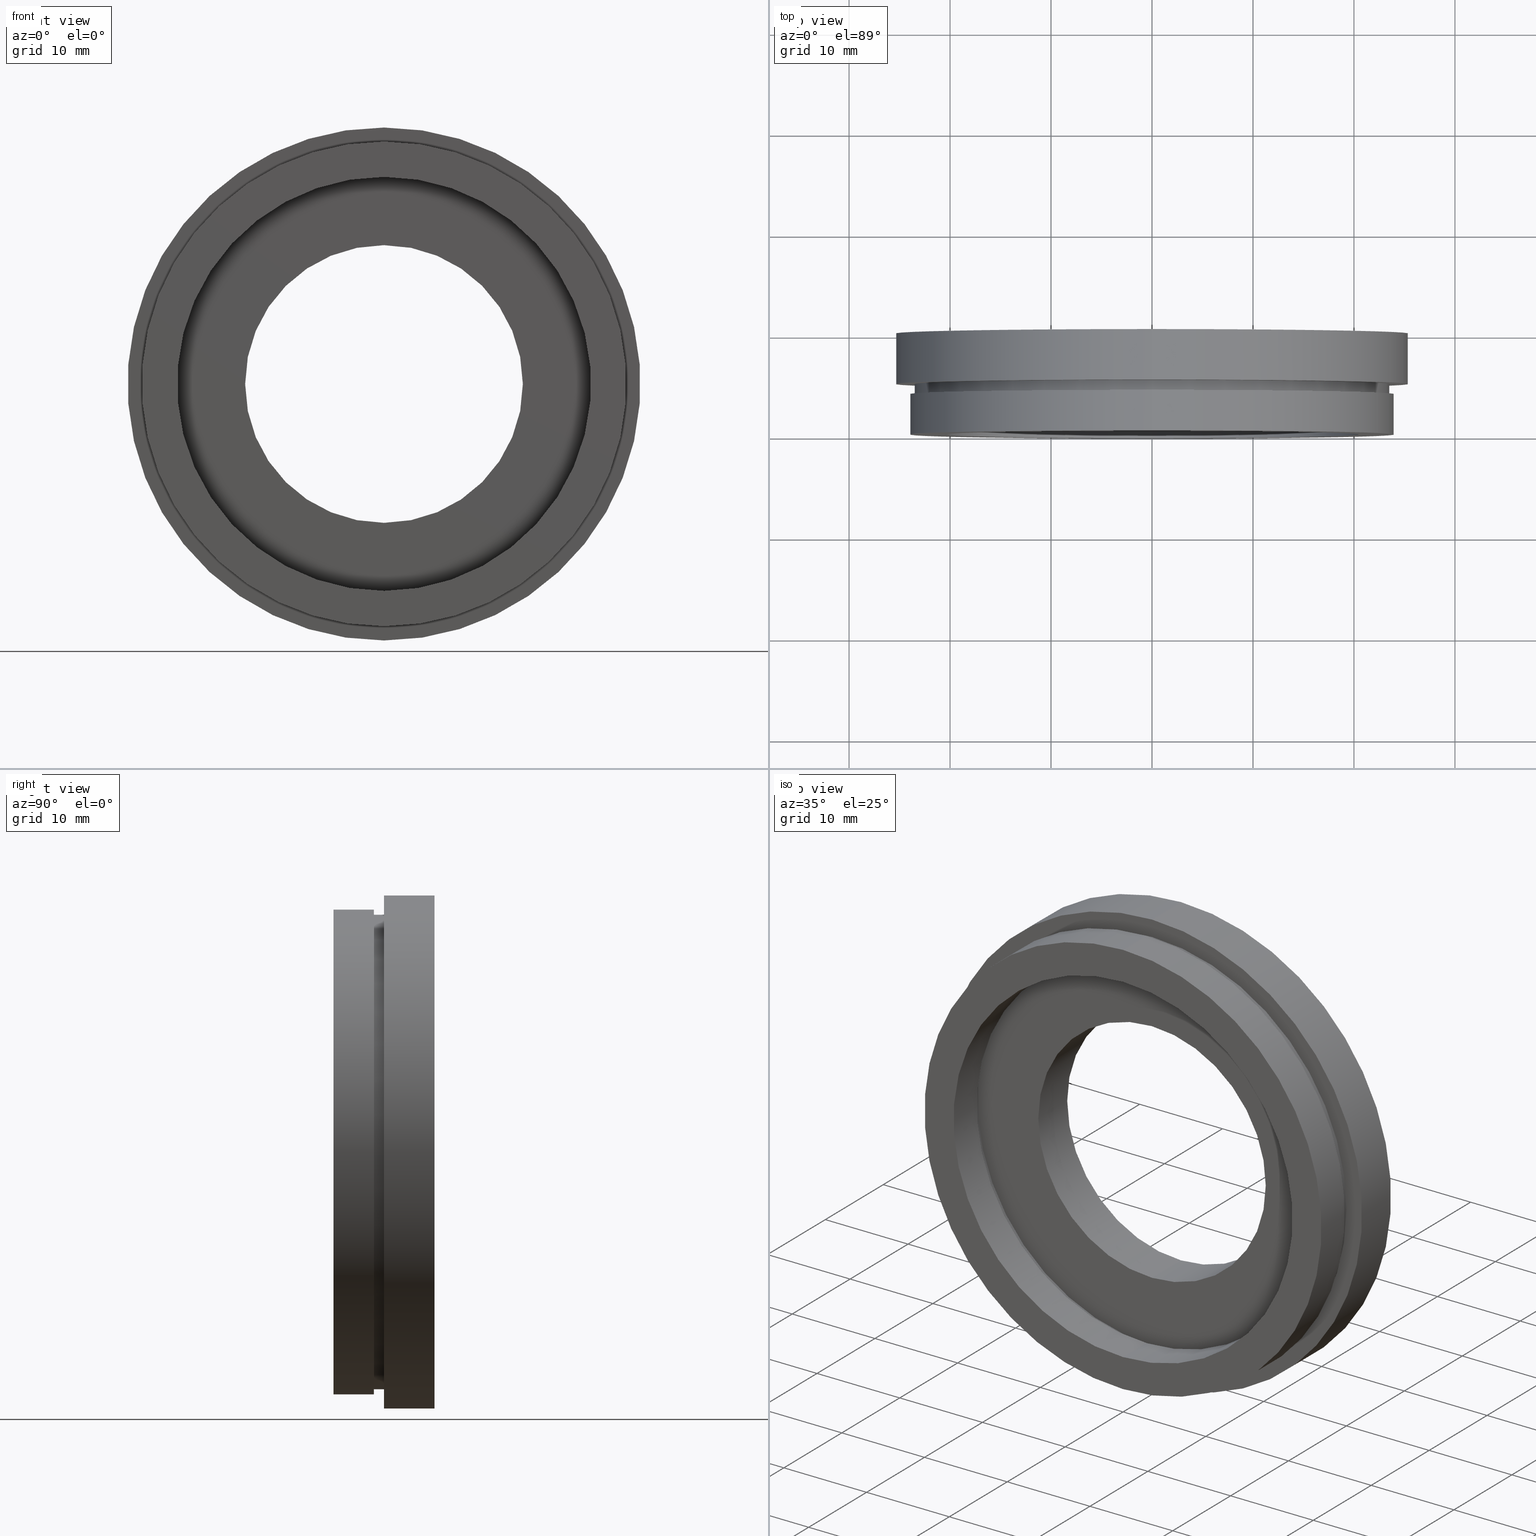
[diagram: canonical four-view strip — front | top / right | iso, engineering-drawing reading convention]
A machine part, canonical four-view strip (front | top / right | iso — engineering-drawing reading convention). The complete STEP part file that produces these views, byte-faithful:
ISO-10303-21;
HEADER;
FILE_DESCRIPTION (( 'STEP AP214' ),
    '1' );
FILE_NAME ('504016.STEP',
    '2019-09-18T07:06:29',
    ( 'user' ),
    ( '΢���й�' ),
    'SwSTEP 2.0',
    'SolidWorks 2016',
    '' );
FILE_SCHEMA (( 'AUTOMOTIVE_DESIGN' ));
ENDSEC;

DATA;
#1 = CYLINDRICAL_SURFACE ( 'NONE', #480, 23.50000000000000000 ) ;
#2 = ORIENTED_EDGE ( 'NONE', *, *, #218, .T. ) ;
#3 = ORIENTED_EDGE ( 'NONE', *, *, #392, .F. ) ;
#4 = CIRCLE ( 'NONE', #190, 23.50000000000000000 ) ;
#5 = FACE_BOUND ( 'NONE', #342, .T. ) ;
#6 = AXIS2_PLACEMENT_3D ( 'NONE', #558, #422, #316 ) ;
#7 = SURFACE_SIDE_STYLE ('',( #557 ) ) ;
#8 = ORIENTED_EDGE ( 'NONE', *, *, #317, .F. ) ;
#9 = DIRECTION ( 'NONE',  ( -0.0000000000000000000, 1.000000000000000000, -0.0000000000000000000 ) ) ;
#10 = CARTESIAN_POINT ( 'NONE',  ( 2.510525938252074500E-015, 17.41929831819392000, -20.50000000000000400 ) ) ;
#11 = DIRECTION ( 'NONE',  ( -0.0000000000000000000, 1.000000000000000000, 0.0000000000000000000 ) ) ;
#12 = DIRECTION ( 'NONE',  ( 0.0000000000000000000, -1.000000000000000000, 0.0000000000000000000 ) ) ;
#13 = PRESENTATION_LAYER_ASSIGNMENT (  '', '', ( #605 ) ) ;
#14 = CYLINDRICAL_SURFACE ( 'NONE', #404, 20.50000000000000400 ) ;
#15 = DIRECTION ( 'NONE',  ( 0.0000000000000000000, 0.0000000000000000000, 1.000000000000000000 ) ) ;
#16 = VERTEX_POINT ( 'NONE', #251 ) ;
#17 = DIRECTION ( 'NONE',  ( 0.0000000000000000000, -1.000000000000000000, 0.0000000000000000000 ) ) ;
#18 = VERTEX_POINT ( 'NONE', #499 ) ;
#19 = ORIENTED_EDGE ( 'NONE', *, *, #276, .T. ) ;
#20 = SURFACE_SIDE_STYLE ('',( #329 ) ) ;
#21 = CARTESIAN_POINT ( 'NONE',  ( 13.75000000000000000, 10.00000000000000000, 0.0000000000000000000 ) ) ;
#22 =( GEOMETRIC_REPRESENTATION_CONTEXT ( 3 ) GLOBAL_UNCERTAINTY_ASSIGNED_CONTEXT ( ( #610 ) ) GLOBAL_UNIT_ASSIGNED_CONTEXT ( ( #73, #127, #377 ) ) REPRESENTATION_CONTEXT ( 'NONE', 'WORKASPACE' ) );
#23 = DIRECTION ( 'NONE',  ( 0.0000000000000000000, 0.0000000000000000000, 1.000000000000000000 ) ) ;
#24 = EDGE_LOOP ( 'NONE', ( #67, #486 ) ) ;
#25 = VERTEX_POINT ( 'NONE', #339 ) ;
#26 = ORIENTED_EDGE ( 'NONE', *, *, #216, .F. ) ;
#27 =( NAMED_UNIT ( * ) SI_UNIT ( $, .STERADIAN. ) SOLID_ANGLE_UNIT ( ) );
#28 = CYLINDRICAL_SURFACE ( 'NONE', #133, 24.00000000000000400 ) ;
#29 = COLOUR_RGB ( '',1.000000000000000000, 1.000000000000000000, 1.000000000000000000 ) ;
#30 = CIRCLE ( 'NONE', #355, 24.00000000000000400 ) ;
#31 = VERTEX_POINT ( 'NONE', #531 ) ;
#32 = VERTEX_POINT ( 'NONE', #545 ) ;
#33 = COLOUR_RGB ( '',1.000000000000000000, 1.000000000000000000, 1.000000000000000000 ) ;
#34 = MECHANICAL_DESIGN_GEOMETRIC_PRESENTATION_REPRESENTATION (  '', ( #508 ), #337 ) ;
#35 = UNCERTAINTY_MEASURE_WITH_UNIT (LENGTH_MEASURE( 1.000000000000000100E-005 ), #336, 'distance_accuracy_value', 'NONE');
#36 = DIRECTION ( 'NONE',  ( -0.0000000000000000000, 1.000000000000000000, -0.0000000000000000000 ) ) ;
#37 = SURFACE_STYLE_USAGE ( .BOTH. , #20 ) ;
#38 = ORIENTED_EDGE ( 'NONE', *, *, #440, .F. ) ;
#39 = CARTESIAN_POINT ( 'NONE',  ( 0.0000000000000000000, 17.41929831819392000, 24.00000000000000400 ) ) ;
#40 = FACE_OUTER_BOUND ( 'NONE', #458, .T. ) ;
#41 = VERTEX_POINT ( 'NONE', #405 ) ;
#42 = VERTEX_POINT ( 'NONE', #128 ) ;
#43 = EDGE_LOOP ( 'NONE', ( #446, #556 ) ) ;
#44 = DIRECTION ( 'NONE',  ( -0.0000000000000000000, 1.000000000000000000, -0.0000000000000000000 ) ) ;
#45 = AXIS2_PLACEMENT_3D ( 'NONE', #597, #52, #578 ) ;
#46 = DIRECTION ( 'NONE',  ( -0.0000000000000000000, 1.000000000000000000, -0.0000000000000000000 ) ) ;
#47 =( LENGTH_UNIT ( ) NAMED_UNIT ( * ) SI_UNIT ( .MILLI., .METRE. ) );
#48 = SURFACE_STYLE_FILL_AREA ( #548 ) ;
#49 = DIRECTION ( 'NONE',  ( -0.0000000000000000000, 1.000000000000000000, 0.0000000000000000000 ) ) ;
#50 = FACE_OUTER_BOUND ( 'NONE', #369, .T. ) ;
#51 = DIRECTION ( 'NONE',  ( -0.0000000000000000000, 1.000000000000000000, -0.0000000000000000000 ) ) ;
#52 = DIRECTION ( 'NONE',  ( -0.0000000000000000000, 1.000000000000000000, -0.0000000000000000000 ) ) ;
#53 = VERTEX_POINT ( 'NONE', #465 ) ;
#54 = DIRECTION ( 'NONE',  ( -0.0000000000000000000, 1.000000000000000000, -0.0000000000000000000 ) ) ;
#55 = MECHANICAL_DESIGN_GEOMETRIC_PRESENTATION_REPRESENTATION (  '', ( #542 ), #22 ) ;
#56 = DIRECTION ( 'NONE',  ( -0.0000000000000000000, 1.000000000000000000, 0.0000000000000000000 ) ) ;
#57 = ORIENTED_EDGE ( 'NONE', *, *, #614, .F. ) ;
#58 =( NAMED_UNIT ( * ) PLANE_ANGLE_UNIT ( ) SI_UNIT ( $, .RADIAN. ) );
#59 = SURFACE_SIDE_STYLE ('',( #183 ) ) ;
#60 = CARTESIAN_POINT ( 'NONE',  ( 0.0000000000000000000, 5.000000000000000900, 0.0000000000000000000 ) ) ;
#61 = DIRECTION ( 'NONE',  ( 0.0000000000000000000, 0.0000000000000000000, 1.000000000000000000 ) ) ;
#62 = FILL_AREA_STYLE ('',( #476 ) ) ;
#63 = CIRCLE ( 'NONE', #229, 25.39999999999999900 ) ;
#64 = SURFACE_SIDE_STYLE ('',( #285 ) ) ;
#65 = ORIENTED_EDGE ( 'NONE', *, *, #451, .F. ) ;
#66 = DIRECTION ( 'NONE',  ( 0.0000000000000000000, 0.0000000000000000000, 1.000000000000000000 ) ) ;
#67 = ORIENTED_EDGE ( 'NONE', *, *, #146, .T. ) ;
#68 = VERTEX_POINT ( 'NONE', #102 ) ;
#69 = DIRECTION ( 'NONE',  ( -0.0000000000000000000, 1.000000000000000000, -0.0000000000000000000 ) ) ;
#70 = FILL_AREA_STYLE ('',( #174 ) ) ;
#71 = STYLED_ITEM ( 'NONE', ( #310 ), #466 ) ;
#72 = ORIENTED_EDGE ( 'NONE', *, *, #491, .T. ) ;
#73 =( LENGTH_UNIT ( ) NAMED_UNIT ( * ) SI_UNIT ( .MILLI., .METRE. ) );
#74 = VECTOR ( 'NONE', #137, 1000.000000000000000 ) ;
#75 = FACE_OUTER_BOUND ( 'NONE', #313, .T. ) ;
#76 = AXIS2_PLACEMENT_3D ( 'NONE', #590, #585, #581 ) ;
#77 = DIRECTION ( 'NONE',  ( -0.0000000000000000000, 1.000000000000000000, -0.0000000000000000000 ) ) ;
#78 = ORIENTED_EDGE ( 'NONE', *, *, #323, .F. ) ;
#79 = ORIENTED_EDGE ( 'NONE', *, *, #323, .T. ) ;
#80 = EDGE_LOOP ( 'NONE', ( #165, #108 ) ) ;
#81 = AXIS2_PLACEMENT_3D ( 'NONE', #546, #77, #231 ) ;
#82 = ORIENTED_EDGE ( 'NONE', *, *, #510, .T. ) ;
#83 = CYLINDRICAL_SURFACE ( 'NONE', #353, 21.10000000000000100 ) ;
#84 = FACE_BOUND ( 'NONE', #600, .T. ) ;
#85 = DIRECTION ( 'NONE',  ( 0.0000000000000000000, -0.0000000000000000000, -1.000000000000000000 ) ) ;
#86 = ORIENTED_EDGE ( 'NONE', *, *, #463, .T. ) ;
#87 = COLOUR_RGB ( '',1.000000000000000000, 1.000000000000000000, 1.000000000000000000 ) ;
#88 = ORIENTED_EDGE ( 'NONE', *, *, #382, .T. ) ;
#89 = LINE ( 'NONE', #298, #91 ) ;
#90 = ORIENTED_EDGE ( 'NONE', *, *, #216, .T. ) ;
#91 = VECTOR ( 'NONE', #44, 1000.000000000000000 ) ;
#92 = AXIS2_PLACEMENT_3D ( 'NONE', #335, #195, #224 ) ;
#93 = CARTESIAN_POINT ( 'NONE',  ( 0.0000000000000000000, 17.41929831819392000, 0.0000000000000000000 ) ) ;
#94 = DIRECTION ( 'NONE',  ( 0.0000000000000000000, 0.0000000000000000000, 1.000000000000000000 ) ) ;
#95 = EDGE_CURVE ( 'NONE', #267, #410, #481, .T. ) ;
#96 = DIRECTION ( 'NONE',  ( 0.0000000000000000000, 0.0000000000000000000, 1.000000000000000000 ) ) ;
#97 = PLANE ( 'NONE',  #576 ) ;
#98 = CIRCLE ( 'NONE', #564, 21.10000000000000100 ) ;
#99 = VERTEX_POINT ( 'NONE', #378 ) ;
#100 = FILL_AREA_STYLE_COLOUR ( '', #419 ) ;
#101 = EDGE_LOOP ( 'NONE', ( #3, #262, #358, #297 ) ) ;
#102 = CARTESIAN_POINT ( 'NONE',  ( 2.510525938252074500E-015, 0.0000000000000000000, -20.50000000000000000 ) ) ;
#103 = CARTESIAN_POINT ( 'NONE',  ( 0.0000000000000000000, 17.41929831819392000, 0.0000000000000000000 ) ) ;
#104 = AXIS2_PLACEMENT_3D ( 'NONE', #429, #527, #94 ) ;
#105 = ORIENTED_EDGE ( 'NONE', *, *, #451, .T. ) ;
#106 = DIRECTION ( 'NONE',  ( -0.0000000000000000000, 1.000000000000000000, -0.0000000000000000000 ) ) ;
#107 = FACE_OUTER_BOUND ( 'NONE', #240, .T. ) ;
#108 = ORIENTED_EDGE ( 'NONE', *, *, #525, .F. ) ;
#109 = FACE_OUTER_BOUND ( 'NONE', #376, .T. ) ;
#110 =( GEOMETRIC_REPRESENTATION_CONTEXT ( 3 ) GLOBAL_UNCERTAINTY_ASSIGNED_CONTEXT ( ( #35 ) ) GLOBAL_UNIT_ASSIGNED_CONTEXT ( ( #336, #58, #235 ) ) REPRESENTATION_CONTEXT ( 'NONE', 'WORKASPACE' ) );
#111 = CIRCLE ( 'NONE', #104, 25.39999999999999900 ) ;
#112 = FACE_OUTER_BOUND ( 'NONE', #347, .T. ) ;
#113 = CYLINDRICAL_SURFACE ( 'NONE', #303, 21.10000000000000100 ) ;
#114 = CARTESIAN_POINT ( 'NONE',  ( 1.683889348827610700E-015, 4.999999999999999100, -13.75000000000000000 ) ) ;
#115 = AXIS2_PLACEMENT_3D ( 'NONE', #406, #148, #555 ) ;
#116 = CARTESIAN_POINT ( 'NONE',  ( 2.584004746200915400E-015, 5.000000000000000900, -21.10000000000000100 ) ) ;
#117 = DIRECTION ( 'NONE',  ( -0.0000000000000000000, 1.000000000000000000, -0.0000000000000000000 ) ) ;
#118 = EDGE_LOOP ( 'NONE', ( #264, #273, #265, #619 ) ) ;
#119 = VECTOR ( 'NONE', #504, 1000.000000000000000 ) ;
#120 = AXIS2_PLACEMENT_3D ( 'NONE', #571, #196, #61 ) ;
#121 = CARTESIAN_POINT ( 'NONE',  ( 0.0000000000000000000, 17.41929831819392000, 0.0000000000000000000 ) ) ;
#122 = FILL_AREA_STYLE_COLOUR ( '', #33 ) ;
#123 = EDGE_CURVE ( 'NONE', #31, #41, #4, .T. ) ;
#124 = FACE_OUTER_BOUND ( 'NONE', #366, .T. ) ;
#125 =( NAMED_UNIT ( * ) SI_UNIT ( $, .STERADIAN. ) SOLID_ANGLE_UNIT ( ) );
#126 = ORIENTED_EDGE ( 'NONE', *, *, #146, .F. ) ;
#127 =( NAMED_UNIT ( * ) PLANE_ANGLE_UNIT ( ) SI_UNIT ( $, .RADIAN. ) );
#128 = CARTESIAN_POINT ( 'NONE',  ( 3.110602869834276900E-015, 10.00000000000000000, -25.39999999999999900 ) ) ;
#129 = CARTESIAN_POINT ( 'NONE',  ( 0.0000000000000000000, 0.0000000000000000000, 0.0000000000000000000 ) ) ;
#130 = DIRECTION ( 'NONE',  ( 0.0000000000000000000, 0.0000000000000000000, 1.000000000000000000 ) ) ;
#131 = FILL_AREA_STYLE_COLOUR ( '', #87 ) ;
#132 = CYLINDRICAL_SURFACE ( 'NONE', #533, 23.50000000000000000 ) ;
#133 = AXIS2_PLACEMENT_3D ( 'NONE', #268, #252, #340 ) ;
#134 = CIRCLE ( 'NONE', #586, 21.10000000000000100 ) ;
#135 = VECTOR ( 'NONE', #330, 1000.000000000000000 ) ;
#136 = VERTEX_POINT ( 'NONE', #232 ) ;
#137 = DIRECTION ( 'NONE',  ( -0.0000000000000000000, 1.000000000000000000, -0.0000000000000000000 ) ) ;
#138 = ORIENTED_EDGE ( 'NONE', *, *, #317, .T. ) ;
#139 = MECHANICAL_DESIGN_GEOMETRIC_PRESENTATION_REPRESENTATION (  '', ( #290 ), #110 ) ;
#140 = DIRECTION ( 'NONE',  ( -0.0000000000000000000, 1.000000000000000000, -0.0000000000000000000 ) ) ;
#141 = CARTESIAN_POINT ( 'NONE',  ( 20.50000000000000400, 4.000000000000000000, 0.0000000000000000000 ) ) ;
#142 = AXIS2_PLACEMENT_3D ( 'NONE', #333, #289, #15 ) ;
#143 = CARTESIAN_POINT ( 'NONE',  ( 0.0000000000000000000, 10.00000000000000000, 0.0000000000000000000 ) ) ;
#144 = CARTESIAN_POINT ( 'NONE',  ( 0.0000000000000000000, 4.999999999999999100, 13.75000000000000000 ) ) ;
#145 = CIRCLE ( 'NONE', #239, 21.10000000000000100 ) ;
#146 = EDGE_CURVE ( 'NONE', #16, #68, #553, .T. ) ;
#147 = CARTESIAN_POINT ( 'NONE',  ( 0.0000000000000000000, 5.000000000000000900, 21.10000000000000100 ) ) ;
#148 = DIRECTION ( 'NONE',  ( -0.0000000000000000000, 1.000000000000000000, -0.0000000000000000000 ) ) ;
#149 = ORIENTED_EDGE ( 'NONE', *, *, #614, .T. ) ;
#150 = DIRECTION ( 'NONE',  ( -0.0000000000000000000, 1.000000000000000000, -0.0000000000000000000 ) ) ;
#151 = DIRECTION ( 'NONE',  ( 0.0000000000000000000, 0.0000000000000000000, 1.000000000000000000 ) ) ;
#152 = AXIS2_PLACEMENT_3D ( 'NONE', #623, #46, #357 ) ;
#153 = DIRECTION ( 'NONE',  ( 0.0000000000000000000, 0.0000000000000000000, 1.000000000000000000 ) ) ;
#154 = PLANE ( 'NONE',  #602 ) ;
#155 = CIRCLE ( 'NONE', #524, 23.50000000000000000 ) ;
#156 =( NAMED_UNIT ( * ) SI_UNIT ( $, .STERADIAN. ) SOLID_ANGLE_UNIT ( ) );
#157 = CLOSED_SHELL ( 'NONE', ( #452, #206, #543, #253, #401, #466, #408, #319, #522, #431, #351, #295, #175, #394, #460, #306, #300, #454 ) ) ;
#158 =( NAMED_UNIT ( * ) SI_UNIT ( $, .STERADIAN. ) SOLID_ANGLE_UNIT ( ) );
#159 = UNCERTAINTY_MEASURE_WITH_UNIT (LENGTH_MEASURE( 1.000000000000000100E-005 ), #286, 'distance_accuracy_value', 'NONE');
#160 = FILL_AREA_STYLE ('',( #245 ) ) ;
#161 = FACE_OUTER_BOUND ( 'NONE', #287, .T. ) ;
#162 = ORIENTED_EDGE ( 'NONE', *, *, #299, .T. ) ;
#163 = EDGE_LOOP ( 'NONE', ( #204, #280, #19, #86 ) ) ;
#164 = ORIENTED_EDGE ( 'NONE', *, *, #276, .F. ) ;
#165 = ORIENTED_EDGE ( 'NONE', *, *, #218, .F. ) ;
#166 = PRESENTATION_STYLE_ASSIGNMENT (( #598 ) ) ;
#167 = CARTESIAN_POINT ( 'NONE',  ( 0.0000000000000000000, 17.41929831819392000, 25.39999999999999900 ) ) ;
#168 = MECHANICAL_DESIGN_GEOMETRIC_PRESENTATION_REPRESENTATION (  '', ( #71 ), #199 ) ;
#169 = PRODUCT_DEFINITION_CONTEXT ( 'detailed design', #277, 'design' ) ;
#170 = PRODUCT_DEFINITION_SHAPE ( 'NONE', 'NONE',  #423 ) ;
#171 = FACE_BOUND ( 'NONE', #24, .T. ) ;
#172 =( LENGTH_UNIT ( ) NAMED_UNIT ( * ) SI_UNIT ( .MILLI., .METRE. ) );
#173 = ORIENTED_EDGE ( 'NONE', *, *, #392, .T. ) ;
#174 = FILL_AREA_STYLE_COLOUR ( '', #29 ) ;
#175 = ADVANCED_FACE ( 'NONE', ( #618, #75 ), #243, .F. ) ;
#176 = ORIENTED_EDGE ( 'NONE', *, *, #517, .T. ) ;
#177 = ORIENTED_EDGE ( 'NONE', *, *, #459, .T. ) ;
#178 = CARTESIAN_POINT ( 'NONE',  ( 0.0000000000000000000, 0.0000000000000000000, 0.0000000000000000000 ) ) ;
#179 = PRESENTATION_LAYER_ASSIGNMENT (  '', '', ( #290 ) ) ;
#180 = SURFACE_STYLE_USAGE ( .BOTH. , #181 ) ;
#181 = SURFACE_SIDE_STYLE ('',( #226 ) ) ;
#182 = AXIS2_PLACEMENT_3D ( 'NONE', #430, #49, #362 ) ;
#183 = SURFACE_STYLE_FILL_AREA ( #580 ) ;
#184 = DIRECTION ( 'NONE',  ( 0.0000000000000000000, 0.0000000000000000000, 1.000000000000000000 ) ) ;
#185 = ORIENTED_EDGE ( 'NONE', *, *, #383, .T. ) ;
#186 = UNCERTAINTY_MEASURE_WITH_UNIT (LENGTH_MEASURE( 1.000000000000000100E-005 ), #272, 'distance_accuracy_value', 'NONE');
#187 = DIRECTION ( 'NONE',  ( 0.0000000000000000000, -1.000000000000000000, 0.0000000000000000000 ) ) ;
#188 =( NAMED_UNIT ( * ) PLANE_ANGLE_UNIT ( ) SI_UNIT ( $, .RADIAN. ) );
#189 = VERTEX_POINT ( 'NONE', #116 ) ;
#190 = AXIS2_PLACEMENT_3D ( 'NONE', #393, #559, #184 ) ;
#191 = CARTESIAN_POINT ( 'NONE',  ( 0.0000000000000000000, 0.0000000000000000000, 24.00000000000000400 ) ) ;
#192 = DIRECTION ( 'NONE',  ( 0.0000000000000000000, 0.0000000000000000000, 1.000000000000000000 ) ) ;
#193 = EDGE_CURVE ( 'NONE', #368, #371, #30, .T. ) ;
#194 = SURFACE_STYLE_USAGE ( .BOTH. , #59 ) ;
#195 = DIRECTION ( 'NONE',  ( -0.0000000000000000000, 1.000000000000000000, -0.0000000000000000000 ) ) ;
#196 = DIRECTION ( 'NONE',  ( -0.0000000000000000000, 1.000000000000000000, -0.0000000000000000000 ) ) ;
#197 = DIRECTION ( 'NONE',  ( 0.0000000000000000000, 0.0000000000000000000, 1.000000000000000000 ) ) ;
#198 = DIRECTION ( 'NONE',  ( 0.0000000000000000000, 0.0000000000000000000, 1.000000000000000000 ) ) ;
#199 =( GEOMETRIC_REPRESENTATION_CONTEXT ( 3 ) GLOBAL_UNCERTAINTY_ASSIGNED_CONTEXT ( ( #343 ) ) GLOBAL_UNIT_ASSIGNED_CONTEXT ( ( #219, #188, #158 ) ) REPRESENTATION_CONTEXT ( 'NONE', 'WORKASPACE' ) );
#200 = VECTOR ( 'NONE', #238, 1000.000000000000000 ) ;
#201 = CARTESIAN_POINT ( 'NONE',  ( 0.0000000000000000000, 4.000000000000000000, 0.0000000000000000000 ) ) ;
#202 = DIRECTION ( 'NONE',  ( 0.0000000000000000000, 0.0000000000000000000, 1.000000000000000000 ) ) ;
#203 = CARTESIAN_POINT ( 'NONE',  ( 0.0000000000000000000, 10.00000000000000000, 13.75000000000000000 ) ) ;
#204 = ORIENTED_EDGE ( 'NONE', *, *, #374, .F. ) ;
#205 =( NAMED_UNIT ( * ) SI_UNIT ( $, .STERADIAN. ) SOLID_ANGLE_UNIT ( ) );
#206 = ADVANCED_FACE ( 'NONE', ( #308 ), #113, .F. ) ;
#207 = DIRECTION ( 'NONE',  ( -0.0000000000000000000, 1.000000000000000000, -0.0000000000000000000 ) ) ;
#208 = DIRECTION ( 'NONE',  ( 0.0000000000000000000, -0.0000000000000000000, -1.000000000000000000 ) ) ;
#209 = AXIS2_PLACEMENT_3D ( 'NONE', #129, #488, #621 ) ;
#210 = AXIS2_PLACEMENT_3D ( 'NONE', #400, #528, #202 ) ;
#211 = DIRECTION ( 'NONE',  ( -0.0000000000000000000, 1.000000000000000000, -0.0000000000000000000 ) ) ;
#212 = ORIENTED_EDGE ( 'NONE', *, *, #123, .F. ) ;
#213 = UNCERTAINTY_MEASURE_WITH_UNIT (LENGTH_MEASURE( 1.000000000000000100E-005 ), #47, 'distance_accuracy_value', 'NONE');
#214 = EDGE_LOOP ( 'NONE', ( #26, #82, #138, #589 ) ) ;
#215 = CARTESIAN_POINT ( 'NONE',  ( 0.0000000000000000000, 5.000000000000000900, 0.0000000000000000000 ) ) ;
#216 = EDGE_CURVE ( 'NONE', #41, #32, #449, .T. ) ;
#217 = PRESENTATION_STYLE_ASSIGNMENT (( #180 ) ) ;
#218 = EDGE_CURVE ( 'NONE', #352, #608, #417, .T. ) ;
#219 =( LENGTH_UNIT ( ) NAMED_UNIT ( * ) SI_UNIT ( .MILLI., .METRE. ) );
#220 = UNCERTAINTY_MEASURE_WITH_UNIT (LENGTH_MEASURE( 1.000000000000000100E-005 ), #172, 'distance_accuracy_value', 'NONE');
#221 = ORIENTED_EDGE ( 'NONE', *, *, #266, .F. ) ;
#222 = AXIS2_PLACEMENT_3D ( 'NONE', #60, #150, #363 ) ;
#223 = ORIENTED_EDGE ( 'NONE', *, *, #95, .F. ) ;
#224 = DIRECTION ( 'NONE',  ( 0.0000000000000000000, 0.0000000000000000000, 1.000000000000000000 ) ) ;
#225 =( NAMED_UNIT ( * ) SI_UNIT ( $, .STERADIAN. ) SOLID_ANGLE_UNIT ( ) );
#226 = SURFACE_STYLE_FILL_AREA ( #70 ) ;
#227 = ORIENTED_EDGE ( 'NONE', *, *, #382, .F. ) ;
#228 = CARTESIAN_POINT ( 'NONE',  ( 0.0000000000000000000, 4.000000000000000000, 24.00000000000000400 ) ) ;
#229 = AXIS2_PLACEMENT_3D ( 'NONE', #281, #439, #322 ) ;
#230 = DIRECTION ( 'NONE',  ( -0.0000000000000000000, 1.000000000000000000, -0.0000000000000000000 ) ) ;
#231 = DIRECTION ( 'NONE',  ( 0.0000000000000000000, 0.0000000000000000000, 1.000000000000000000 ) ) ;
#232 = CARTESIAN_POINT ( 'NONE',  ( 0.0000000000000000000, 4.000000000000000000, 21.10000000000000100 ) ) ;
#233 = EDGE_LOOP ( 'NONE', ( #324, #90, #396, #8 ) ) ;
#234 = CIRCLE ( 'NONE', #345, 23.50000000000000000 ) ;
#235 =( NAMED_UNIT ( * ) SI_UNIT ( $, .STERADIAN. ) SOLID_ANGLE_UNIT ( ) );
#236 = LINE ( 'NONE', #237, #588 ) ;
#237 = CARTESIAN_POINT ( 'NONE',  ( 0.0000000000000000000, 17.41929831819392000, 13.75000000000000000 ) ) ;
#238 = DIRECTION ( 'NONE',  ( -0.0000000000000000000, 1.000000000000000000, -0.0000000000000000000 ) ) ;
#239 = AXIS2_PLACEMENT_3D ( 'NONE', #291, #373, #66 ) ;
#240 = EDGE_LOOP ( 'NONE', ( #270, #263 ) ) ;
#241 = AXIS2_PLACEMENT_3D ( 'NONE', #534, #399, #613 ) ;
#242 = CIRCLE ( 'NONE', #210, 20.50000000000000400 ) ;
#243 = PLANE ( 'NONE',  #334 ) ;
#244 = SURFACE_SIDE_STYLE ('',( #540 ) ) ;
#245 = FILL_AREA_STYLE_COLOUR ( '', #309 ) ;
#246 = SURFACE_STYLE_FILL_AREA ( #160 ) ;
#247 = CIRCLE ( 'NONE', #115, 24.00000000000000400 ) ;
#248 = CYLINDRICAL_SURFACE ( 'NONE', #142, 24.00000000000000400 ) ;
#249 = LINE ( 'NONE', #414, #346 ) ;
#250 = LINE ( 'NONE', #375, #74 ) ;
#251 = CARTESIAN_POINT ( 'NONE',  ( 0.0000000000000000000, 0.0000000000000000000, 20.50000000000000000 ) ) ;
#252 = DIRECTION ( 'NONE',  ( -0.0000000000000000000, 1.000000000000000000, -0.0000000000000000000 ) ) ;
#253 = ADVANCED_FACE ( 'NONE', ( #112 ), #327, .T. ) ;
#254 = CIRCLE ( 'NONE', #222, 23.50000000000000000 ) ;
#255 = ORIENTED_EDGE ( 'NONE', *, *, #604, .F. ) ;
#256 = CIRCLE ( 'NONE', #381, 24.00000000000000400 ) ;
#257 = FILL_AREA_STYLE ('',( #122 ) ) ;
#258 = DIRECTION ( 'NONE',  ( 0.0000000000000000000, 0.0000000000000000000, 1.000000000000000000 ) ) ;
#259 = DIRECTION ( 'NONE',  ( -0.0000000000000000000, 1.000000000000000000, -0.0000000000000000000 ) ) ;
#260 = MECHANICAL_DESIGN_GEOMETRIC_PRESENTATION_REPRESENTATION (  '', ( #421 ), #539 ) ;
#261 = ORIENTED_EDGE ( 'NONE', *, *, #563, .F. ) ;
#262 = ORIENTED_EDGE ( 'NONE', *, *, #473, .T. ) ;
#263 = ORIENTED_EDGE ( 'NONE', *, *, #622, .T. ) ;
#264 = ORIENTED_EDGE ( 'NONE', *, *, #573, .T. ) ;
#265 = ORIENTED_EDGE ( 'NONE', *, *, #391, .F. ) ;
#266 = EDGE_CURVE ( 'NONE', #274, #368, #474, .T. ) ;
#267 = VERTEX_POINT ( 'NONE', #114 ) ;
#268 = CARTESIAN_POINT ( 'NONE',  ( 0.0000000000000000000, 17.41929831819392000, 0.0000000000000000000 ) ) ;
#269 = AXIS2_PLACEMENT_3D ( 'NONE', #413, #259, #442 ) ;
#270 = ORIENTED_EDGE ( 'NONE', *, *, #551, .T. ) ;
#271 = ORIENTED_EDGE ( 'NONE', *, *, #483, .T. ) ;
#272 =( LENGTH_UNIT ( ) NAMED_UNIT ( * ) SI_UNIT ( .MILLI., .METRE. ) );
#273 = ORIENTED_EDGE ( 'NONE', *, *, #266, .T. ) ;
#274 = VERTEX_POINT ( 'NONE', #512 ) ;
#275 = DIRECTION ( 'NONE',  ( 0.0000000000000000000, 0.0000000000000000000, 1.000000000000000000 ) ) ;
#276 = EDGE_CURVE ( 'NONE', #136, #397, #438, .T. ) ;
#277 = APPLICATION_CONTEXT ( 'automotive_design' ) ;
#278 = FACE_BOUND ( 'NONE', #412, .T. ) ;
#279 = ORIENTED_EDGE ( 'NONE', *, *, #536, .T. ) ;
#280 = ORIENTED_EDGE ( 'NONE', *, *, #551, .F. ) ;
#281 = CARTESIAN_POINT ( 'NONE',  ( 0.0000000000000000000, 10.00000000000000000, 0.0000000000000000000 ) ) ;
#282 = UNCERTAINTY_MEASURE_WITH_UNIT (LENGTH_MEASURE( 1.000000000000000100E-005 ), #526, 'distance_accuracy_value', 'NONE');
#283 = PRESENTATION_LAYER_ASSIGNMENT (  '', '', ( #312 ) ) ;
#284 = DIRECTION ( 'NONE',  ( -0.0000000000000000000, 1.000000000000000000, -0.0000000000000000000 ) ) ;
#285 = SURFACE_STYLE_FILL_AREA ( #257 ) ;
#286 =( LENGTH_UNIT ( ) NAMED_UNIT ( * ) SI_UNIT ( .MILLI., .METRE. ) );
#287 = EDGE_LOOP ( 'NONE', ( #255, #126, #105, #185 ) ) ;
#288 = DIRECTION ( 'NONE',  ( 0.0000000000000000000, 0.0000000000000000000, 1.000000000000000000 ) ) ;
#289 = DIRECTION ( 'NONE',  ( -0.0000000000000000000, 1.000000000000000000, -0.0000000000000000000 ) ) ;
#290 = STYLED_ITEM ( 'NONE', ( #503 ), #433 ) ;
#291 = CARTESIAN_POINT ( 'NONE',  ( 0.0000000000000000000, 4.000000000000000000, 0.0000000000000000000 ) ) ;
#292 = CARTESIAN_POINT ( 'NONE',  ( 0.0000000000000000000, 4.999999999999999100, 0.0000000000000000000 ) ) ;
#293 = MECHANICAL_DESIGN_GEOMETRIC_PRESENTATION_REPRESENTATION (  '', ( #469 ), #569 ) ;
#294 = FACE_OUTER_BOUND ( 'NONE', #568, .T. ) ;
#295 = ADVANCED_FACE ( 'NONE', ( #428 ), #426, .T. ) ;
#296 = FACE_OUTER_BOUND ( 'NONE', #118, .T. ) ;
#297 = ORIENTED_EDGE ( 'NONE', *, *, #403, .F. ) ;
#298 = CARTESIAN_POINT ( 'NONE',  ( 0.0000000000000000000, 17.41929831819392000, 23.50000000000000000 ) ) ;
#299 = EDGE_CURVE ( 'NONE', #189, #397, #98, .T. ) ;
#300 = ADVANCED_FACE ( 'NONE', ( #278, #107 ), #565, .F. ) ;
#301 = CIRCLE ( 'NONE', #152, 21.10000000000000100 ) ;
#302 = CYLINDRICAL_SURFACE ( 'NONE', #554, 20.50000000000000400 ) ;
#303 = AXIS2_PLACEMENT_3D ( 'NONE', #121, #36, #332 ) ;
#304 = SURFACE_SIDE_STYLE ('',( #48 ) ) ;
#305 = SURFACE_STYLE_USAGE ( .BOTH. , #304 ) ;
#306 = ADVANCED_FACE ( 'NONE', ( #448 ), #83, .F. ) ;
#307 = LINE ( 'NONE', #10, #462 ) ;
#308 = FACE_OUTER_BOUND ( 'NONE', #435, .T. ) ;
#309 = COLOUR_RGB ( '',1.000000000000000000, 1.000000000000000000, 1.000000000000000000 ) ;
#310 = PRESENTATION_STYLE_ASSIGNMENT (( #305 ) ) ;
#311 =( NAMED_UNIT ( * ) PLANE_ANGLE_UNIT ( ) SI_UNIT ( $, .RADIAN. ) );
#312 = STYLED_ITEM ( 'NONE', ( #166 ), #498 ) ;
#313 = EDGE_LOOP ( 'NONE', ( #471, #511 ) ) ;
#314 = FACE_OUTER_BOUND ( 'NONE', #607, .T. ) ;
#315 = PRESENTATION_STYLE_ASSIGNMENT (( #484 ) ) ;
#316 = DIRECTION ( 'NONE',  ( 0.0000000000000000000, 0.0000000000000000000, 1.000000000000000000 ) ) ;
#317 = EDGE_CURVE ( 'NONE', #31, #18, #89, .T. ) ;
#318 = PRESENTATION_LAYER_ASSIGNMENT (  '', '', ( #421 ) ) ;
#319 = ADVANCED_FACE ( 'NONE', ( #50 ), #248, .T. ) ;
#320 = APPLICATION_PROTOCOL_DEFINITION ( 'draft international standard', 'automotive_design', 1998, #277 ) ;
#321 = PRESENTATION_LAYER_ASSIGNMENT (  '', '', ( #469 ) ) ;
#322 = DIRECTION ( 'NONE',  ( 0.0000000000000000000, 0.0000000000000000000, 1.000000000000000000 ) ) ;
#323 = EDGE_CURVE ( 'NONE', #267, #608, #348, .T. ) ;
#324 = ORIENTED_EDGE ( 'NONE', *, *, #123, .T. ) ;
#325 = CARTESIAN_POINT ( 'NONE',  ( 0.0000000000000000000, 0.0000000000000000000, 0.0000000000000000000 ) ) ;
#326 = VERTEX_POINT ( 'NONE', #328 ) ;
#327 = CYLINDRICAL_SURFACE ( 'NONE', #45, 25.39999999999999900 ) ;
#328 = CARTESIAN_POINT ( 'NONE',  ( 2.584004746200915400E-015, 4.000000000000000000, -21.10000000000000100 ) ) ;
#329 = SURFACE_STYLE_FILL_AREA ( #514 ) ;
#330 = DIRECTION ( 'NONE',  ( -0.0000000000000000000, 1.000000000000000000, -0.0000000000000000000 ) ) ;
#331 = DIRECTION ( 'NONE',  ( 0.0000000000000000000, 0.0000000000000000000, 1.000000000000000000 ) ) ;
#332 = DIRECTION ( 'NONE',  ( 0.0000000000000000000, 0.0000000000000000000, 1.000000000000000000 ) ) ;
#333 = CARTESIAN_POINT ( 'NONE',  ( 0.0000000000000000000, 17.41929831819392000, 0.0000000000000000000 ) ) ;
#334 = AXIS2_PLACEMENT_3D ( 'NONE', #21, #17, #468 ) ;
#335 = CARTESIAN_POINT ( 'NONE',  ( 0.0000000000000000000, 10.00000000000000000, 0.0000000000000000000 ) ) ;
#336 =( LENGTH_UNIT ( ) NAMED_UNIT ( * ) SI_UNIT ( .MILLI., .METRE. ) );
#337 =( GEOMETRIC_REPRESENTATION_CONTEXT ( 3 ) GLOBAL_UNCERTAINTY_ASSIGNED_CONTEXT ( ( #282 ) ) GLOBAL_UNIT_ASSIGNED_CONTEXT ( ( #526, #493, #156 ) ) REPRESENTATION_CONTEXT ( 'NONE', 'WORKASPACE' ) );
#338 = CIRCLE ( 'NONE', #92, 13.75000000000000000 ) ;
#339 = CARTESIAN_POINT ( 'NONE',  ( 0.0000000000000000000, 4.000000000000000000, 20.50000000000000400 ) ) ;
#340 = DIRECTION ( 'NONE',  ( 0.0000000000000000000, 0.0000000000000000000, 1.000000000000000000 ) ) ;
#341 = DIRECTION ( 'NONE',  ( -0.0000000000000000000, 1.000000000000000000, -0.0000000000000000000 ) ) ;
#342 = EDGE_LOOP ( 'NONE', ( #176, #385 ) ) ;
#343 = UNCERTAINTY_MEASURE_WITH_UNIT (LENGTH_MEASURE( 1.000000000000000100E-005 ), #219, 'distance_accuracy_value', 'NONE');
#344 = VERTEX_POINT ( 'NONE', #191 ) ;
#345 = AXIS2_PLACEMENT_3D ( 'NONE', #472, #341, #198 ) ;
#346 = VECTOR ( 'NONE', #482, 1000.000000000000000 ) ;
#347 = EDGE_LOOP ( 'NONE', ( #387, #173, #457, #261 ) ) ;
#348 = LINE ( 'NONE', #616, #200 ) ;
#349 = FACE_OUTER_BOUND ( 'NONE', #43, .T. ) ;
#350 = COLOUR_RGB ( '',1.000000000000000000, 1.000000000000000000, 1.000000000000000000 ) ;
#351 = ADVANCED_FACE ( 'NONE', ( #349, #560 ), #579, .F. ) ;
#352 = VERTEX_POINT ( 'NONE', #203 ) ;
#353 = AXIS2_PLACEMENT_3D ( 'NONE', #537, #516, #153 ) ;
#354 = PRESENTATION_STYLE_ASSIGNMENT (( #487 ) ) ;
#355 = AXIS2_PLACEMENT_3D ( 'NONE', #583, #365, #96 ) ;
#356 = CIRCLE ( 'NONE', #574, 25.39999999999999900 ) ;
#357 = DIRECTION ( 'NONE',  ( 0.0000000000000000000, 0.0000000000000000000, 1.000000000000000000 ) ) ;
#358 = ORIENTED_EDGE ( 'NONE', *, *, #563, .T. ) ;
#359 = ORIENTED_EDGE ( 'NONE', *, *, #391, .T. ) ;
#360 = MECHANICAL_DESIGN_GEOMETRIC_PRESENTATION_REPRESENTATION (  '', ( #605 ), #501 ) ;
#361 = SURFACE_STYLE_USAGE ( .BOTH. , #7 ) ;
#362 = DIRECTION ( 'NONE',  ( 0.0000000000000000000, 0.0000000000000000000, 1.000000000000000000 ) ) ;
#363 = DIRECTION ( 'NONE',  ( 0.0000000000000000000, 0.0000000000000000000, 1.000000000000000000 ) ) ;
#364 = UNCERTAINTY_MEASURE_WITH_UNIT (LENGTH_MEASURE( 1.000000000000000100E-005 ), #434, 'distance_accuracy_value', 'NONE');
#365 = DIRECTION ( 'NONE',  ( -0.0000000000000000000, 1.000000000000000000, -0.0000000000000000000 ) ) ;
#366 = EDGE_LOOP ( 'NONE', ( #38, #436, #149, #65 ) ) ;
#367 = CARTESIAN_POINT ( 'NONE',  ( 20.50000000000000000, 0.0000000000000000000, 0.0000000000000000000 ) ) ;
#368 = VERTEX_POINT ( 'NONE', #418 ) ;
#369 = EDGE_LOOP ( 'NONE', ( #221, #88, #279, #370 ) ) ;
#370 = ORIENTED_EDGE ( 'NONE', *, *, #193, .F. ) ;
#371 = VERTEX_POINT ( 'NONE', #228 ) ;
#372 = AXIS2_PLACEMENT_3D ( 'NONE', #292, #587, #288 ) ;
#373 = DIRECTION ( 'NONE',  ( -0.0000000000000000000, 1.000000000000000000, -0.0000000000000000000 ) ) ;
#374 = EDGE_CURVE ( 'NONE', #326, #189, #250, .T. ) ;
#375 = CARTESIAN_POINT ( 'NONE',  ( 2.584004746200915400E-015, 17.41929831819392000, -21.10000000000000100 ) ) ;
#376 = EDGE_LOOP ( 'NONE', ( #359, #398 ) ) ;
#377 =( NAMED_UNIT ( * ) SI_UNIT ( $, .STERADIAN. ) SOLID_ANGLE_UNIT ( ) );
#378 = CARTESIAN_POINT ( 'NONE',  ( 0.0000000000000000000, 10.00000000000000000, 25.39999999999999900 ) ) ;
#379 = ORIENTED_EDGE ( 'NONE', *, *, #374, .T. ) ;
#380 = EDGE_LOOP ( 'NONE', ( #177, #72 ) ) ;
#381 = AXIS2_PLACEMENT_3D ( 'NONE', #325, #544, #275 ) ;
#382 = EDGE_CURVE ( 'NONE', #274, #344, #256, .T. ) ;
#383 = EDGE_CURVE ( 'NONE', #25, #489, #242, .T. ) ;
#384 = AXIS2_PLACEMENT_3D ( 'NONE', #424, #402, #331 ) ;
#385 = ORIENTED_EDGE ( 'NONE', *, *, #95, .T. ) ;
#386 = ORIENTED_EDGE ( 'NONE', *, *, #622, .F. ) ;
#387 = ORIENTED_EDGE ( 'NONE', *, *, #505, .T. ) ;
#388 = ORIENTED_EDGE ( 'NONE', *, *, #383, .F. ) ;
#389 = ORIENTED_EDGE ( 'NONE', *, *, #463, .F. ) ;
#390 = CARTESIAN_POINT ( 'NONE',  ( 0.0000000000000000000, 17.41929831819392000, 21.10000000000000100 ) ) ;
#391 = EDGE_CURVE ( 'NONE', #371, #368, #247, .T. ) ;
#392 = EDGE_CURVE ( 'NONE', #53, #42, #249, .T. ) ;
#393 = CARTESIAN_POINT ( 'NONE',  ( 0.0000000000000000000, 4.000000000000000000, 0.0000000000000000000 ) ) ;
#394 = ADVANCED_FACE ( 'NONE', ( #40 ), #572, .F. ) ;
#395 = AXIS2_PLACEMENT_3D ( 'NONE', #178, #475, #197 ) ;
#396 = ORIENTED_EDGE ( 'NONE', *, *, #459, .F. ) ;
#397 = VERTEX_POINT ( 'NONE', #147 ) ;
#398 = ORIENTED_EDGE ( 'NONE', *, *, #193, .T. ) ;
#399 = DIRECTION ( 'NONE',  ( -0.0000000000000000000, 1.000000000000000000, -0.0000000000000000000 ) ) ;
#400 = CARTESIAN_POINT ( 'NONE',  ( 0.0000000000000000000, 4.000000000000000000, 0.0000000000000000000 ) ) ;
#401 = ADVANCED_FACE ( 'NONE', ( #477 ), #1, .T. ) ;
#402 = DIRECTION ( 'NONE',  ( -0.0000000000000000000, 1.000000000000000000, -0.0000000000000000000 ) ) ;
#403 = EDGE_CURVE ( 'NONE', #42, #99, #63, .T. ) ;
#404 = AXIS2_PLACEMENT_3D ( 'NONE', #506, #549, #258 ) ;
#405 = CARTESIAN_POINT ( 'NONE',  ( 2.877919977996280300E-015, 4.000000000000000000, -23.50000000000000000 ) ) ;
#406 = CARTESIAN_POINT ( 'NONE',  ( 0.0000000000000000000, 4.000000000000000000, 0.0000000000000000000 ) ) ;
#407 = FILL_AREA_STYLE_COLOUR ( '', #577 ) ;
#408 = ADVANCED_FACE ( 'NONE', ( #314, #171 ), #154, .F. ) ;
#409 = CARTESIAN_POINT ( 'NONE',  ( 0.0000000000000000000, 17.41929831819392000, 20.50000000000000400 ) ) ;
#410 = VERTEX_POINT ( 'NONE', #144 ) ;
#411 = PRESENTATION_STYLE_ASSIGNMENT (( #194 ) ) ;
#412 = EDGE_LOOP ( 'NONE', ( #388, #57 ) ) ;
#413 = CARTESIAN_POINT ( 'NONE',  ( 0.0000000000000000000, 17.41929831819392000, 0.0000000000000000000 ) ) ;
#414 = CARTESIAN_POINT ( 'NONE',  ( 3.110602869834276900E-015, 17.41929831819392000, -25.39999999999999900 ) ) ;
#415 = PRESENTATION_LAYER_ASSIGNMENT (  '', '', ( #71 ) ) ;
#416 = SHAPE_DEFINITION_REPRESENTATION ( #170, #433 ) ;
#417 = CIRCLE ( 'NONE', #6, 13.75000000000000000 ) ;
#418 = CARTESIAN_POINT ( 'NONE',  ( 2.939152317953648300E-015, 4.000000000000000000, -24.00000000000000400 ) ) ;
#419 = COLOUR_RGB ( '',1.000000000000000000, 1.000000000000000000, 1.000000000000000000 ) ;
#420 = CARTESIAN_POINT ( 'NONE',  ( 1.683889348827610700E-015, 10.00000000000000000, -13.75000000000000000 ) ) ;
#421 = STYLED_ITEM ( 'NONE', ( #411 ), #319 ) ;
#422 = DIRECTION ( 'NONE',  ( -0.0000000000000000000, 1.000000000000000000, -0.0000000000000000000 ) ) ;
#423 = PRODUCT_DEFINITION ( 'δ֪', '', #464, #169 ) ;
#424 = CARTESIAN_POINT ( 'NONE',  ( 0.0000000000000000000, 17.41929831819392000, 0.0000000000000000000 ) ) ;
#425 = ORIENTED_EDGE ( 'NONE', *, *, #483, .F. ) ;
#426 = CYLINDRICAL_SURFACE ( 'NONE', #76, 25.39999999999999900 ) ;
#427 = DIRECTION ( 'NONE',  ( 0.0000000000000000000, 0.0000000000000000000, 1.000000000000000000 ) ) ;
#428 = FACE_OUTER_BOUND ( 'NONE', #101, .T. ) ;
#429 = CARTESIAN_POINT ( 'NONE',  ( 0.0000000000000000000, 5.000000000000000900, 0.0000000000000000000 ) ) ;
#430 = CARTESIAN_POINT ( 'NONE',  ( 23.50000000000000000, 5.000000000000000000, 0.0000000000000000000 ) ) ;
#431 = ADVANCED_FACE ( 'NONE', ( #552 ), #132, .T. ) ;
#432 = SURFACE_SIDE_STYLE ('',( #246 ) ) ;
#433 = ADVANCED_BREP_SHAPE_REPRESENTATION ( '504016', ( #498, #209 ), #596 ) ;
#434 =( LENGTH_UNIT ( ) NAMED_UNIT ( * ) SI_UNIT ( .MILLI., .METRE. ) );
#435 = EDGE_LOOP ( 'NONE', ( #386, #379, #162, #164 ) ) ;
#436 = ORIENTED_EDGE ( 'NONE', *, *, #604, .T. ) ;
#437 = LINE ( 'NONE', #167, #523 ) ;
#438 = LINE ( 'NONE', #390, #538 ) ;
#439 = DIRECTION ( 'NONE',  ( -0.0000000000000000000, 1.000000000000000000, -0.0000000000000000000 ) ) ;
#440 = EDGE_CURVE ( 'NONE', #68, #16, #601, .T. ) ;
#441 = AXIS2_PLACEMENT_3D ( 'NONE', #141, #12, #85 ) ;
#442 = DIRECTION ( 'NONE',  ( 0.0000000000000000000, 0.0000000000000000000, 1.000000000000000000 ) ) ;
#443 = PLANE ( 'NONE',  #624 ) ;
#444 = EDGE_CURVE ( 'NONE', #99, #42, #356, .T. ) ;
#445 = PRESENTATION_LAYER_ASSIGNMENT (  '', '', ( #508 ) ) ;
#446 = ORIENTED_EDGE ( 'NONE', *, *, #505, .F. ) ;
#447 = VECTOR ( 'NONE', #54, 1000.000000000000000 ) ;
#448 = FACE_OUTER_BOUND ( 'NONE', #163, .T. ) ;
#449 = LINE ( 'NONE', #470, #135 ) ;
#450 = CIRCLE ( 'NONE', #532, 20.50000000000000400 ) ;
#451 = EDGE_CURVE ( 'NONE', #16, #25, #456, .T. ) ;
#452 = ADVANCED_FACE ( 'NONE', ( #124 ), #14, .F. ) ;
#453 = VERTEX_POINT ( 'NONE', #467 ) ;
#454 = ADVANCED_FACE ( 'NONE', ( #161 ), #302, .F. ) ;
#455 = MECHANICAL_DESIGN_GEOMETRIC_PRESENTATION_REPRESENTATION (  '', ( #312 ), #492 ) ;
#456 = LINE ( 'NONE', #409, #609 ) ;
#457 = ORIENTED_EDGE ( 'NONE', *, *, #444, .F. ) ;
#458 = EDGE_LOOP ( 'NONE', ( #78, #594, #271, #2 ) ) ;
#459 = EDGE_CURVE ( 'NONE', #18, #32, #155, .T. ) ;
#460 = ADVANCED_FACE ( 'NONE', ( #294, #5 ), #443, .F. ) ;
#461 = DIRECTION ( 'NONE',  ( 0.0000000000000000000, 0.0000000000000000000, 1.000000000000000000 ) ) ;
#462 = VECTOR ( 'NONE', #9, 1000.000000000000000 ) ;
#463 = EDGE_CURVE ( 'NONE', #397, #189, #134, .T. ) ;
#464 = PRODUCT_DEFINITION_FORMATION_WITH_SPECIFIED_SOURCE ( '�κ�', '', #595, .NOT_KNOWN. ) ;
#465 = CARTESIAN_POINT ( 'NONE',  ( 3.110602869834276900E-015, 5.000000000000000900, -25.39999999999999900 ) ) ;
#466 = ADVANCED_FACE ( 'NONE', ( #296 ), #28, .T. ) ;
#467 = CARTESIAN_POINT ( 'NONE',  ( 0.0000000000000000000, 5.000000000000000900, 25.39999999999999900 ) ) ;
#468 = DIRECTION ( 'NONE',  ( 0.0000000000000000000, -0.0000000000000000000, -1.000000000000000000 ) ) ;
#469 = STYLED_ITEM ( 'NONE', ( #354 ), #394 ) ;
#470 = CARTESIAN_POINT ( 'NONE',  ( 2.877919977996280300E-015, 17.41929831819392000, -23.50000000000000000 ) ) ;
#471 = ORIENTED_EDGE ( 'NONE', *, *, #444, .T. ) ;
#472 = CARTESIAN_POINT ( 'NONE',  ( 0.0000000000000000000, 4.000000000000000000, 0.0000000000000000000 ) ) ;
#473 = EDGE_CURVE ( 'NONE', #53, #453, #111, .T. ) ;
#474 = LINE ( 'NONE', #541, #119 ) ;
#475 = DIRECTION ( 'NONE',  ( -0.0000000000000000000, 1.000000000000000000, -0.0000000000000000000 ) ) ;
#476 = FILL_AREA_STYLE_COLOUR ( '', #350 ) ;
#477 = FACE_OUTER_BOUND ( 'NONE', #233, .T. ) ;
#478 = CIRCLE ( 'NONE', #120, 25.39999999999999900 ) ;
#479 = FILL_AREA_STYLE_COLOUR ( '', #519 ) ;
#480 = AXIS2_PLACEMENT_3D ( 'NONE', #103, #117, #485 ) ;
#481 = CIRCLE ( 'NONE', #241, 13.75000000000000000 ) ;
#482 = DIRECTION ( 'NONE',  ( -0.0000000000000000000, 1.000000000000000000, -0.0000000000000000000 ) ) ;
#483 = EDGE_CURVE ( 'NONE', #410, #352, #236, .T. ) ;
#484 = SURFACE_STYLE_USAGE ( .BOTH. , #432 ) ;
#485 = DIRECTION ( 'NONE',  ( 0.0000000000000000000, 0.0000000000000000000, 1.000000000000000000 ) ) ;
#486 = ORIENTED_EDGE ( 'NONE', *, *, #440, .T. ) ;
#487 = SURFACE_STYLE_USAGE ( .BOTH. , #64 ) ;
#488 = DIRECTION ( 'NONE',  ( 0.0000000000000000000, 0.0000000000000000000, 1.000000000000000000 ) ) ;
#489 = VERTEX_POINT ( 'NONE', #603 ) ;
#490 = ORIENTED_EDGE ( 'NONE', *, *, #510, .F. ) ;
#491 = EDGE_CURVE ( 'NONE', #32, #18, #254, .T. ) ;
#492 =( GEOMETRIC_REPRESENTATION_CONTEXT ( 3 ) GLOBAL_UNCERTAINTY_ASSIGNED_CONTEXT ( ( #364 ) ) GLOBAL_UNIT_ASSIGNED_CONTEXT ( ( #434, #535, #27 ) ) REPRESENTATION_CONTEXT ( 'NONE', 'WORKASPACE' ) );
#493 =( NAMED_UNIT ( * ) PLANE_ANGLE_UNIT ( ) SI_UNIT ( $, .RADIAN. ) );
#494 =( NAMED_UNIT ( * ) SI_UNIT ( $, .STERADIAN. ) SOLID_ANGLE_UNIT ( ) );
#495 = PRESENTATION_STYLE_ASSIGNMENT (( #37 ) ) ;
#496 = DIRECTION ( 'NONE',  ( -0.0000000000000000000, 1.000000000000000000, -0.0000000000000000000 ) ) ;
#497 = PRODUCT_RELATED_PRODUCT_CATEGORY ( 'part', '', ( #595 ) ) ;
#498 = MANIFOLD_SOLID_BREP ( '��ת1', #157 ) ;
#499 = CARTESIAN_POINT ( 'NONE',  ( 0.0000000000000000000, 5.000000000000000900, 23.50000000000000000 ) ) ;
#500 = DIRECTION ( 'NONE',  ( -0.0000000000000000000, 1.000000000000000000, -0.0000000000000000000 ) ) ;
#501 =( GEOMETRIC_REPRESENTATION_CONTEXT ( 3 ) GLOBAL_UNCERTAINTY_ASSIGNED_CONTEXT ( ( #186 ) ) GLOBAL_UNIT_ASSIGNED_CONTEXT ( ( #272, #562, #225 ) ) REPRESENTATION_CONTEXT ( 'NONE', 'WORKASPACE' ) );
#502 = APPLICATION_PROTOCOL_DEFINITION ( 'draft international standard', 'automotive_design', 1998, #529 ) ;
#503 = PRESENTATION_STYLE_ASSIGNMENT (( #361 ) ) ;
#504 = DIRECTION ( 'NONE',  ( -0.0000000000000000000, 1.000000000000000000, -0.0000000000000000000 ) ) ;
#505 = EDGE_CURVE ( 'NONE', #453, #53, #478, .T. ) ;
#506 = CARTESIAN_POINT ( 'NONE',  ( 0.0000000000000000000, 17.41929831819392000, 0.0000000000000000000 ) ) ;
#507 = CYLINDRICAL_SURFACE ( 'NONE', #269, 13.75000000000000000 ) ;
#508 = STYLED_ITEM ( 'NONE', ( #315 ), #452 ) ;
#509 = DIRECTION ( 'NONE',  ( -0.0000000000000000000, 1.000000000000000000, -0.0000000000000000000 ) ) ;
#510 = EDGE_CURVE ( 'NONE', #41, #31, #234, .T. ) ;
#511 = ORIENTED_EDGE ( 'NONE', *, *, #403, .T. ) ;
#512 = CARTESIAN_POINT ( 'NONE',  ( 2.939152317953648300E-015, 0.0000000000000000000, -24.00000000000000400 ) ) ;
#513 = ORIENTED_EDGE ( 'NONE', *, *, #573, .F. ) ;
#514 = FILL_AREA_STYLE ('',( #407 ) ) ;
#515 = PRESENTATION_LAYER_ASSIGNMENT (  '', '', ( #542 ) ) ;
#516 = DIRECTION ( 'NONE',  ( -0.0000000000000000000, 1.000000000000000000, -0.0000000000000000000 ) ) ;
#517 = EDGE_CURVE ( 'NONE', #410, #267, #599, .T. ) ;
#518 = FILL_AREA_STYLE ('',( #131 ) ) ;
#519 = COLOUR_RGB ( '',1.000000000000000000, 1.000000000000000000, 1.000000000000000000 ) ;
#520 =( NAMED_UNIT ( * ) PLANE_ANGLE_UNIT ( ) SI_UNIT ( $, .RADIAN. ) );
#521 = DIRECTION ( 'NONE',  ( 0.0000000000000000000, 0.0000000000000000000, 1.000000000000000000 ) ) ;
#522 = ADVANCED_FACE ( 'NONE', ( #84, #109 ), #97, .F. ) ;
#523 = VECTOR ( 'NONE', #500, 1000.000000000000000 ) ;
#524 = AXIS2_PLACEMENT_3D ( 'NONE', #550, #496, #23 ) ;
#525 = EDGE_CURVE ( 'NONE', #608, #352, #338, .T. ) ;
#526 =( LENGTH_UNIT ( ) NAMED_UNIT ( * ) SI_UNIT ( .MILLI., .METRE. ) );
#527 = DIRECTION ( 'NONE',  ( -0.0000000000000000000, 1.000000000000000000, -0.0000000000000000000 ) ) ;
#528 = DIRECTION ( 'NONE',  ( -0.0000000000000000000, 1.000000000000000000, -0.0000000000000000000 ) ) ;
#529 = APPLICATION_CONTEXT ( 'automotive_design' ) ;
#530 = DIRECTION ( 'NONE',  ( 0.0000000000000000000, 0.0000000000000000000, 1.000000000000000000 ) ) ;
#531 = CARTESIAN_POINT ( 'NONE',  ( 0.0000000000000000000, 4.000000000000000000, 23.50000000000000000 ) ) ;
#532 = AXIS2_PLACEMENT_3D ( 'NONE', #201, #106, #151 ) ;
#533 = AXIS2_PLACEMENT_3D ( 'NONE', #575, #230, #530 ) ;
#534 = CARTESIAN_POINT ( 'NONE',  ( 0.0000000000000000000, 4.999999999999999100, 0.0000000000000000000 ) ) ;
#535 =( NAMED_UNIT ( * ) PLANE_ANGLE_UNIT ( ) SI_UNIT ( $, .RADIAN. ) );
#536 = EDGE_CURVE ( 'NONE', #344, #371, #582, .T. ) ;
#537 = CARTESIAN_POINT ( 'NONE',  ( 0.0000000000000000000, 17.41929831819392000, 0.0000000000000000000 ) ) ;
#538 = VECTOR ( 'NONE', #69, 1000.000000000000000 ) ;
#539 =( GEOMETRIC_REPRESENTATION_CONTEXT ( 3 ) GLOBAL_UNCERTAINTY_ASSIGNED_CONTEXT ( ( #159 ) ) GLOBAL_UNIT_ASSIGNED_CONTEXT ( ( #286, #520, #125 ) ) REPRESENTATION_CONTEXT ( 'NONE', 'WORKASPACE' ) );
#540 = SURFACE_STYLE_FILL_AREA ( #518 ) ;
#541 = CARTESIAN_POINT ( 'NONE',  ( 2.939152317953648300E-015, 17.41929831819392000, -24.00000000000000400 ) ) ;
#542 = STYLED_ITEM ( 'NONE', ( #495 ), #543 ) ;
#543 = ADVANCED_FACE ( 'NONE', ( #592 ), #507, .F. ) ;
#544 = DIRECTION ( 'NONE',  ( -0.0000000000000000000, 1.000000000000000000, -0.0000000000000000000 ) ) ;
#545 = CARTESIAN_POINT ( 'NONE',  ( 2.877919977996280300E-015, 5.000000000000000900, -23.50000000000000000 ) ) ;
#546 = CARTESIAN_POINT ( 'NONE',  ( 0.0000000000000000000, 0.0000000000000000000, 0.0000000000000000000 ) ) ;
#547 = ORIENTED_EDGE ( 'NONE', *, *, #525, .T. ) ;
#548 = FILL_AREA_STYLE ('',( #479 ) ) ;
#549 = DIRECTION ( 'NONE',  ( -0.0000000000000000000, 1.000000000000000000, -0.0000000000000000000 ) ) ;
#550 = CARTESIAN_POINT ( 'NONE',  ( 0.0000000000000000000, 5.000000000000000900, 0.0000000000000000000 ) ) ;
#551 = EDGE_CURVE ( 'NONE', #136, #326, #145, .T. ) ;
#552 = FACE_OUTER_BOUND ( 'NONE', #214, .T. ) ;
#553 = CIRCLE ( 'NONE', #395, 20.50000000000000000 ) ;
#554 = AXIS2_PLACEMENT_3D ( 'NONE', #93, #509, #130 ) ;
#555 = DIRECTION ( 'NONE',  ( 0.0000000000000000000, 0.0000000000000000000, 1.000000000000000000 ) ) ;
#556 = ORIENTED_EDGE ( 'NONE', *, *, #473, .F. ) ;
#557 = SURFACE_STYLE_FILL_AREA ( #62 ) ;
#558 = CARTESIAN_POINT ( 'NONE',  ( 0.0000000000000000000, 10.00000000000000000, 0.0000000000000000000 ) ) ;
#559 = DIRECTION ( 'NONE',  ( -0.0000000000000000000, 1.000000000000000000, -0.0000000000000000000 ) ) ;
#560 = FACE_BOUND ( 'NONE', #380, .T. ) ;
#561 = CARTESIAN_POINT ( 'NONE',  ( 0.0000000000000000000, 5.000000000000000900, 0.0000000000000000000 ) ) ;
#562 =( NAMED_UNIT ( * ) PLANE_ANGLE_UNIT ( ) SI_UNIT ( $, .RADIAN. ) );
#563 = EDGE_CURVE ( 'NONE', #453, #99, #437, .T. ) ;
#564 = AXIS2_PLACEMENT_3D ( 'NONE', #561, #211, #521 ) ;
#565 = PLANE ( 'NONE',  #441 ) ;
#566 = DIRECTION ( 'NONE',  ( 0.0000000000000000000, 0.0000000000000000000, 1.000000000000000000 ) ) ;
#567 = CARTESIAN_POINT ( 'NONE',  ( 0.0000000000000000000, 0.0000000000000000000, 0.0000000000000000000 ) ) ;
#568 = EDGE_LOOP ( 'NONE', ( #389, #617 ) ) ;
#569 =( GEOMETRIC_REPRESENTATION_CONTEXT ( 3 ) GLOBAL_UNCERTAINTY_ASSIGNED_CONTEXT ( ( #220 ) ) GLOBAL_UNIT_ASSIGNED_CONTEXT ( ( #172, #311, #205 ) ) REPRESENTATION_CONTEXT ( 'NONE', 'WORKASPACE' ) );
#570 = PRODUCT_CONTEXT ( 'NONE', #529, 'mechanical' ) ;
#571 = CARTESIAN_POINT ( 'NONE',  ( 0.0000000000000000000, 5.000000000000000900, 0.0000000000000000000 ) ) ;
#572 = CYLINDRICAL_SURFACE ( 'NONE', #384, 13.75000000000000000 ) ;
#573 = EDGE_CURVE ( 'NONE', #344, #274, #593, .T. ) ;
#574 = AXIS2_PLACEMENT_3D ( 'NONE', #143, #207, #461 ) ;
#575 = CARTESIAN_POINT ( 'NONE',  ( 0.0000000000000000000, 17.41929831819392000, 0.0000000000000000000 ) ) ;
#576 = AXIS2_PLACEMENT_3D ( 'NONE', #611, #187, #208 ) ;
#577 = COLOUR_RGB ( '',1.000000000000000000, 1.000000000000000000, 1.000000000000000000 ) ;
#578 = DIRECTION ( 'NONE',  ( 0.0000000000000000000, 0.0000000000000000000, 1.000000000000000000 ) ) ;
#579 = PLANE ( 'NONE',  #182 ) ;
#580 = FILL_AREA_STYLE ('',( #100 ) ) ;
#581 = DIRECTION ( 'NONE',  ( 0.0000000000000000000, 0.0000000000000000000, 1.000000000000000000 ) ) ;
#582 = LINE ( 'NONE', #39, #447 ) ;
#583 = CARTESIAN_POINT ( 'NONE',  ( 0.0000000000000000000, 4.000000000000000000, 0.0000000000000000000 ) ) ;
#584 =( NAMED_UNIT ( * ) PLANE_ANGLE_UNIT ( ) SI_UNIT ( $, .RADIAN. ) );
#585 = DIRECTION ( 'NONE',  ( -0.0000000000000000000, 1.000000000000000000, -0.0000000000000000000 ) ) ;
#586 = AXIS2_PLACEMENT_3D ( 'NONE', #215, #606, #566 ) ;
#587 = DIRECTION ( 'NONE',  ( -0.0000000000000000000, 1.000000000000000000, -0.0000000000000000000 ) ) ;
#588 = VECTOR ( 'NONE', #284, 1000.000000000000000 ) ;
#589 = ORIENTED_EDGE ( 'NONE', *, *, #491, .F. ) ;
#590 = CARTESIAN_POINT ( 'NONE',  ( 0.0000000000000000000, 17.41929831819392000, 0.0000000000000000000 ) ) ;
#591 = EDGE_LOOP ( 'NONE', ( #223, #79, #547, #425 ) ) ;
#592 = FACE_OUTER_BOUND ( 'NONE', #591, .T. ) ;
#593 = CIRCLE ( 'NONE', #612, 24.00000000000000400 ) ;
#594 = ORIENTED_EDGE ( 'NONE', *, *, #517, .F. ) ;
#595 = PRODUCT ( '504016', '504016', '', ( #570 ) ) ;
#596 =( GEOMETRIC_REPRESENTATION_CONTEXT ( 3 ) GLOBAL_UNCERTAINTY_ASSIGNED_CONTEXT ( ( #213 ) ) GLOBAL_UNIT_ASSIGNED_CONTEXT ( ( #47, #584, #494 ) ) REPRESENTATION_CONTEXT ( 'NONE', 'WORKASPACE' ) );
#597 = CARTESIAN_POINT ( 'NONE',  ( 0.0000000000000000000, 17.41929831819392000, 0.0000000000000000000 ) ) ;
#598 = SURFACE_STYLE_USAGE ( .BOTH. , #244 ) ;
#599 = CIRCLE ( 'NONE', #372, 13.75000000000000000 ) ;
#600 = EDGE_LOOP ( 'NONE', ( #212, #490 ) ) ;
#601 = CIRCLE ( 'NONE', #81, 20.50000000000000000 ) ;
#602 = AXIS2_PLACEMENT_3D ( 'NONE', #367, #56, #427 ) ;
#603 = CARTESIAN_POINT ( 'NONE',  ( 2.510525938252074500E-015, 4.000000000000000000, -20.50000000000000400 ) ) ;
#604 = EDGE_CURVE ( 'NONE', #68, #489, #307, .T. ) ;
#605 = STYLED_ITEM ( 'NONE', ( #217 ), #454 ) ;
#606 = DIRECTION ( 'NONE',  ( -0.0000000000000000000, 1.000000000000000000, -0.0000000000000000000 ) ) ;
#607 = EDGE_LOOP ( 'NONE', ( #513, #227 ) ) ;
#608 = VERTEX_POINT ( 'NONE', #420 ) ;
#609 = VECTOR ( 'NONE', #51, 1000.000000000000000 ) ;
#610 = UNCERTAINTY_MEASURE_WITH_UNIT (LENGTH_MEASURE( 1.000000000000000100E-005 ), #73, 'distance_accuracy_value', 'NONE');
#611 = CARTESIAN_POINT ( 'NONE',  ( 24.00000000000000400, 4.000000000000000000, 0.0000000000000000000 ) ) ;
#612 = AXIS2_PLACEMENT_3D ( 'NONE', #567, #140, #620 ) ;
#613 = DIRECTION ( 'NONE',  ( 0.0000000000000000000, 0.0000000000000000000, 1.000000000000000000 ) ) ;
#614 = EDGE_CURVE ( 'NONE', #489, #25, #450, .T. ) ;
#615 = CARTESIAN_POINT ( 'NONE',  ( 21.10000000000000100, 4.999999999999999100, 0.0000000000000000000 ) ) ;
#616 = CARTESIAN_POINT ( 'NONE',  ( 1.683889348827610700E-015, 17.41929831819392000, -13.75000000000000000 ) ) ;
#617 = ORIENTED_EDGE ( 'NONE', *, *, #299, .F. ) ;
#618 = FACE_BOUND ( 'NONE', #80, .T. ) ;
#619 = ORIENTED_EDGE ( 'NONE', *, *, #536, .F. ) ;
#620 = DIRECTION ( 'NONE',  ( 0.0000000000000000000, 0.0000000000000000000, 1.000000000000000000 ) ) ;
#621 = DIRECTION ( 'NONE',  ( 1.000000000000000000, 0.0000000000000000000, 0.0000000000000000000 ) ) ;
#622 = EDGE_CURVE ( 'NONE', #326, #136, #301, .T. ) ;
#623 = CARTESIAN_POINT ( 'NONE',  ( 0.0000000000000000000, 4.000000000000000000, 0.0000000000000000000 ) ) ;
#624 = AXIS2_PLACEMENT_3D ( 'NONE', #615, #11, #192 ) ;
ENDSEC;
END-ISO-10303-21;
